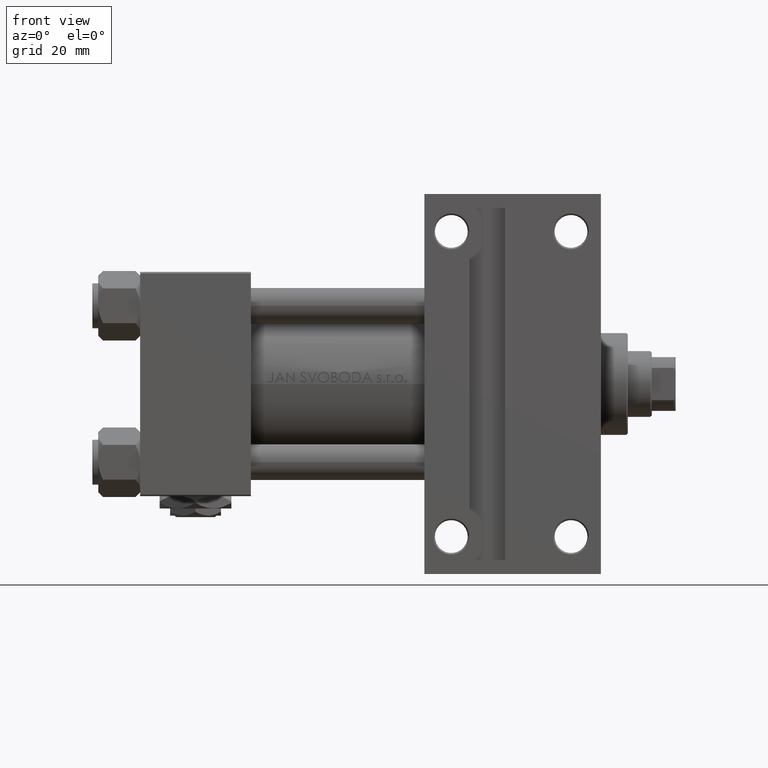
[diagram: clean part render]
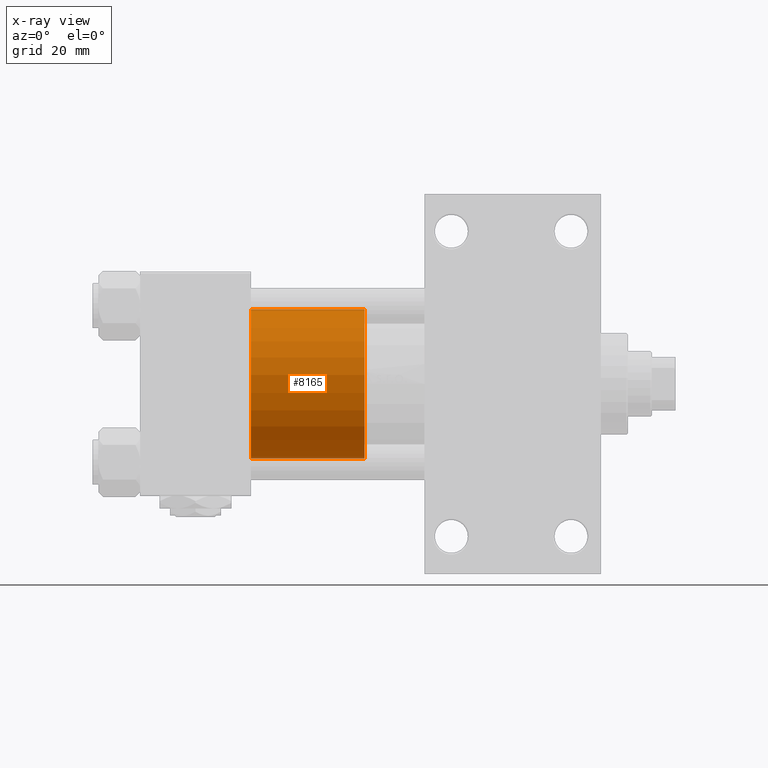
[diagram: x-ray — body ghosted, one internal face saturated and labeled with its STEP entity id]
A machine part, front view, then the same camera in x-ray: the body is ghosted and one INTERNAL B-rep face — a face not visible from any outside direction — is saturated and labeled: STEP entity #8165.
In plain terms, the highlighted cylindrical surface (partial cylindrical patch) has radius 25 mm, axis along (-1, 0, 0).
Its self-contained STEP definition (entity closure, byte-faithful):
#859 = FACE_OUTER_BOUND ( 'NONE', #33585, .T. ) ;
#1393 = DIRECTION ( 'NONE',  ( 1.000000000000000000, 0.000000000000000000, 0.000000000000000000 ) ) ;
#1502 = CARTESIAN_POINT ( 'NONE',  ( 25.00000000000000000, 3.061616997868383043E-15, 38.00000000000000000 ) ) ;
#2227 = VECTOR ( 'NONE', #9784, 1000.000000000000000 ) ;
#4092 = ORIENTED_EDGE ( 'NONE', *, *, #47170, .T. ) ;
#4132 = DIRECTION ( 'NONE',  ( -0.000000000000000000, -0.000000000000000000, -1.000000000000000000 ) ) ;
#4377 = DIRECTION ( 'NONE',  ( 1.000000000000000000, 0.000000000000000000, 0.000000000000000000 ) ) ;
#4703 = AXIS2_PLACEMENT_3D ( 'NONE', #39046, #8394, #4377 ) ;
#7059 = LINE ( 'NONE', #18607, #38853 ) ;
#8133 = EDGE_CURVE ( 'NONE', #37294, #15366, #19933, .T. ) ;
#8138 = CARTESIAN_POINT ( 'NONE',  ( 0.000000000000000000, 0.000000000000000000, 38.00000000000000000 ) ) ;
#8165 = ADVANCED_FACE ( 'NONE', ( #859 ), #16436, .T. ) ;
#8394 = DIRECTION ( 'NONE',  ( 0.000000000000000000, 0.000000000000000000, 1.000000000000000000 ) ) ;
#9784 = DIRECTION ( 'NONE',  ( -0.000000000000000000, -0.000000000000000000, -1.000000000000000000 ) ) ;
#13096 = CARTESIAN_POINT ( 'NONE',  ( 25.00000000000000000, 3.061616997868383043E-15, 38.00000000000000000 ) ) ;
#13305 = VERTEX_POINT ( 'NONE', #25134 ) ;
#15144 = AXIS2_PLACEMENT_3D ( 'NONE', #8138, #4132, #16188 ) ;
#15366 = VERTEX_POINT ( 'NONE', #46144 ) ;
#16188 = DIRECTION ( 'NONE',  ( -1.000000000000000000, 0.000000000000000000, 0.000000000000000000 ) ) ;
#16436 = CYLINDRICAL_SURFACE ( 'NONE', #15144, 25.00000000000000000 ) ;
#18607 = CARTESIAN_POINT ( 'NONE',  ( -25.00000000000000000, 0.000000000000000000, 38.00000000000000000 ) ) ;
#19921 = EDGE_CURVE ( 'NONE', #13305, #26787, #37165, .T. ) ;
#19933 = CIRCLE ( 'NONE', #4703, 25.00000000000000000 ) ;
#21219 = CARTESIAN_POINT ( 'NONE',  ( 0.000000000000000000, 0.000000000000000000, 0.000000000000000000 ) ) ;
#21915 = AXIS2_PLACEMENT_3D ( 'NONE', #21219, #32541, #1393 ) ;
#22377 = DIRECTION ( 'NONE',  ( -0.000000000000000000, -0.000000000000000000, -1.000000000000000000 ) ) ;
#25134 = CARTESIAN_POINT ( 'NONE',  ( 25.00000000000000000, 3.061616997868383043E-15, 0.000000000000000000 ) ) ;
#25963 = ORIENTED_EDGE ( 'NONE', *, *, #8133, .F. ) ;
#26787 = VERTEX_POINT ( 'NONE', #39403 ) ;
#31059 = ORIENTED_EDGE ( 'NONE', *, *, #19921, .T. ) ;
#32541 = DIRECTION ( 'NONE',  ( 0.000000000000000000, 0.000000000000000000, 1.000000000000000000 ) ) ;
#33585 = EDGE_LOOP ( 'NONE', ( #25963, #4092, #31059, #38085 ) ) ;
#34908 = EDGE_CURVE ( 'NONE', #15366, #26787, #7059, .T. ) ;
#36160 = LINE ( 'NONE', #1502, #2227 ) ;
#37165 = CIRCLE ( 'NONE', #21915, 25.00000000000000000 ) ;
#37294 = VERTEX_POINT ( 'NONE', #13096 ) ;
#38085 = ORIENTED_EDGE ( 'NONE', *, *, #34908, .F. ) ;
#38853 = VECTOR ( 'NONE', #22377, 1000.000000000000000 ) ;
#39046 = CARTESIAN_POINT ( 'NONE',  ( 0.000000000000000000, 0.000000000000000000, 38.00000000000000000 ) ) ;
#39403 = CARTESIAN_POINT ( 'NONE',  ( -25.00000000000000000, 0.000000000000000000, 0.000000000000000000 ) ) ;
#46144 = CARTESIAN_POINT ( 'NONE',  ( -25.00000000000000000, 0.000000000000000000, 38.00000000000000000 ) ) ;
#47170 = EDGE_CURVE ( 'NONE', #37294, #13305, #36160, .T. ) ;